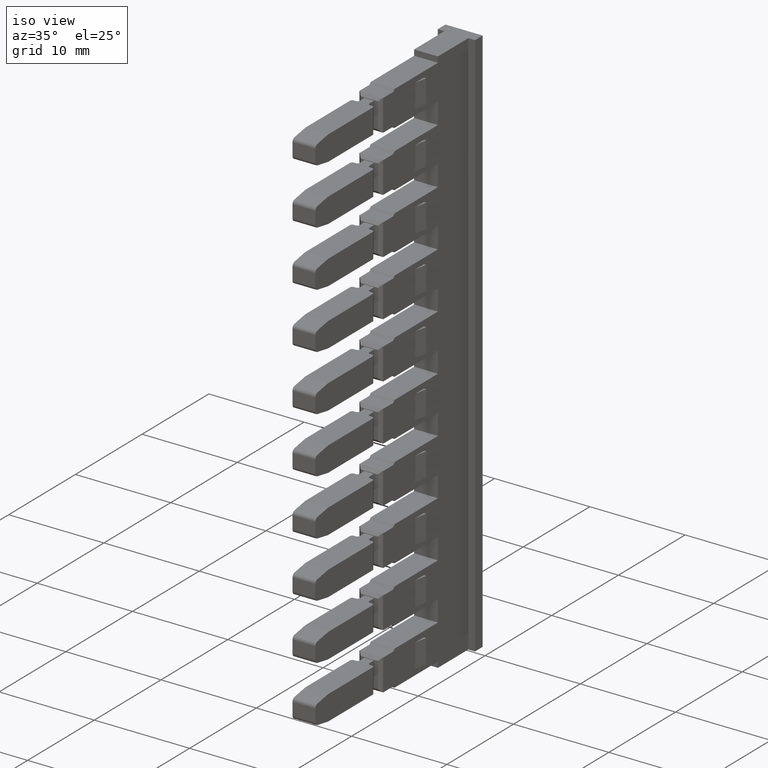
[diagram: clean part render]
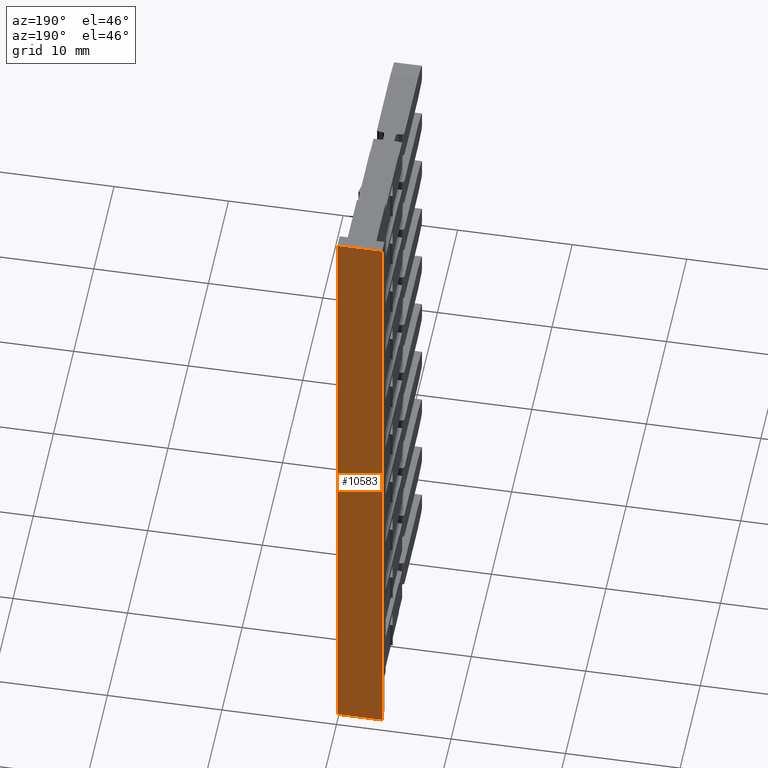
[diagram: tour spotlight — one face highlighted and labeled with its STEP entity id]
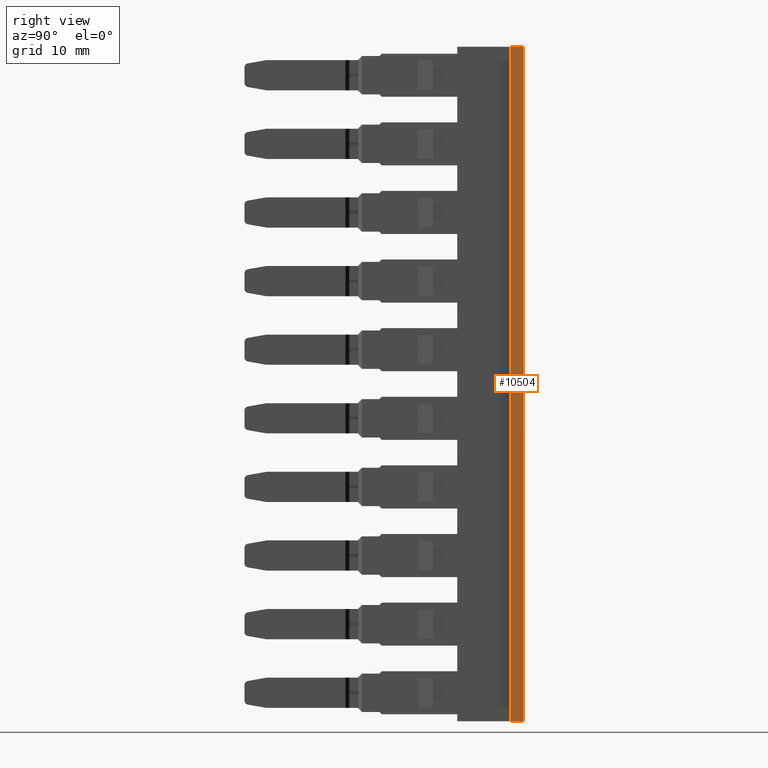
[diagram: tour spotlight — one face highlighted and labeled with its STEP entity id]
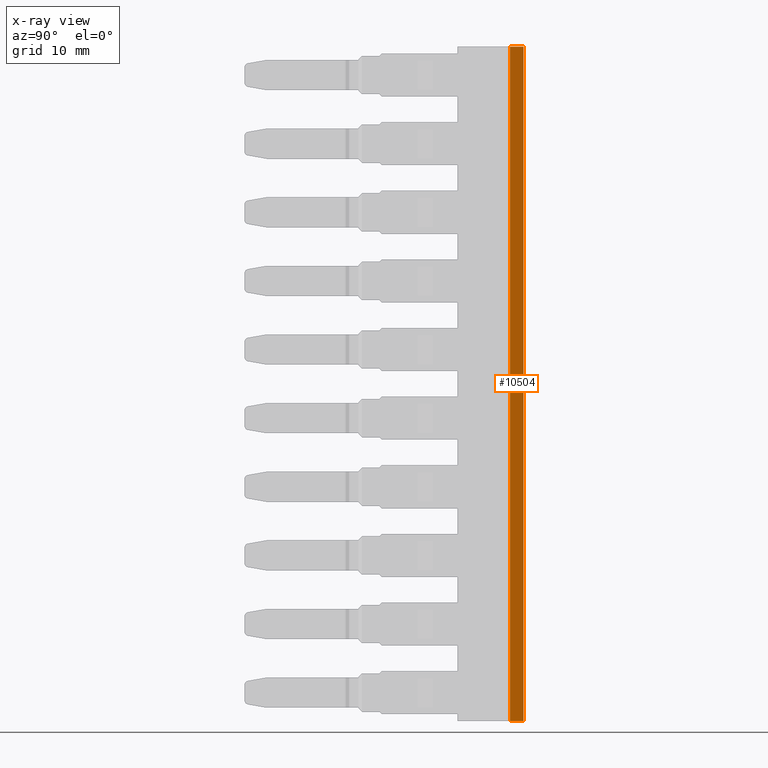
[diagram: x-ray of the same camera — body ghosted, this tour face saturated]
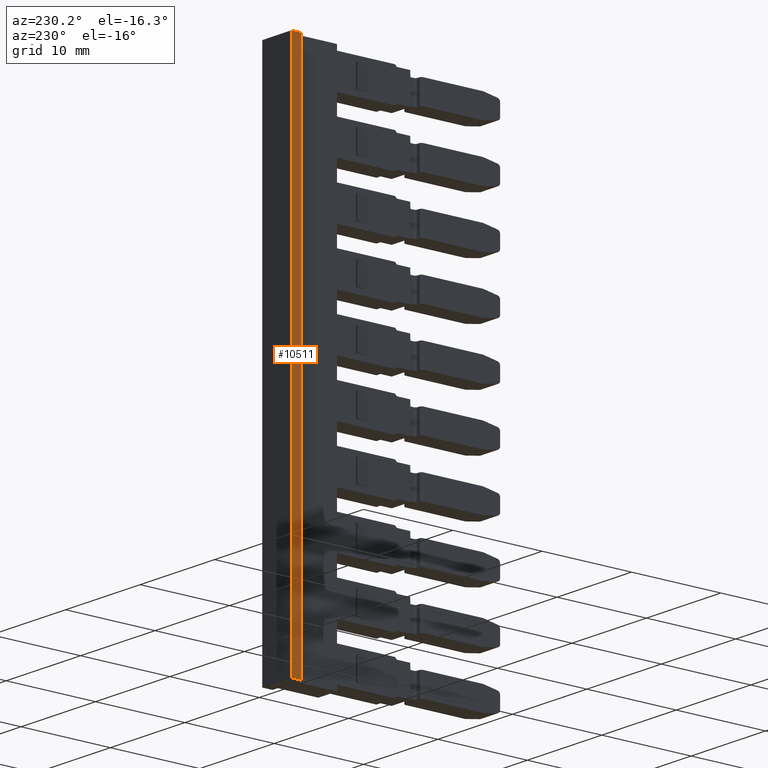
[diagram: tour spotlight — one face highlighted and labeled with its STEP entity id]
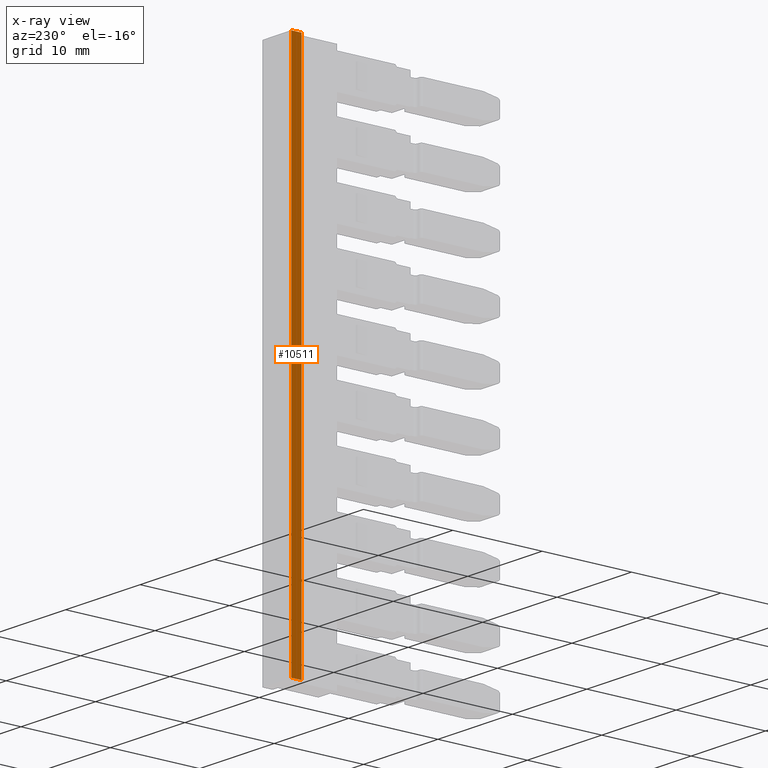
[diagram: x-ray of the same camera — body ghosted, this tour face saturated]
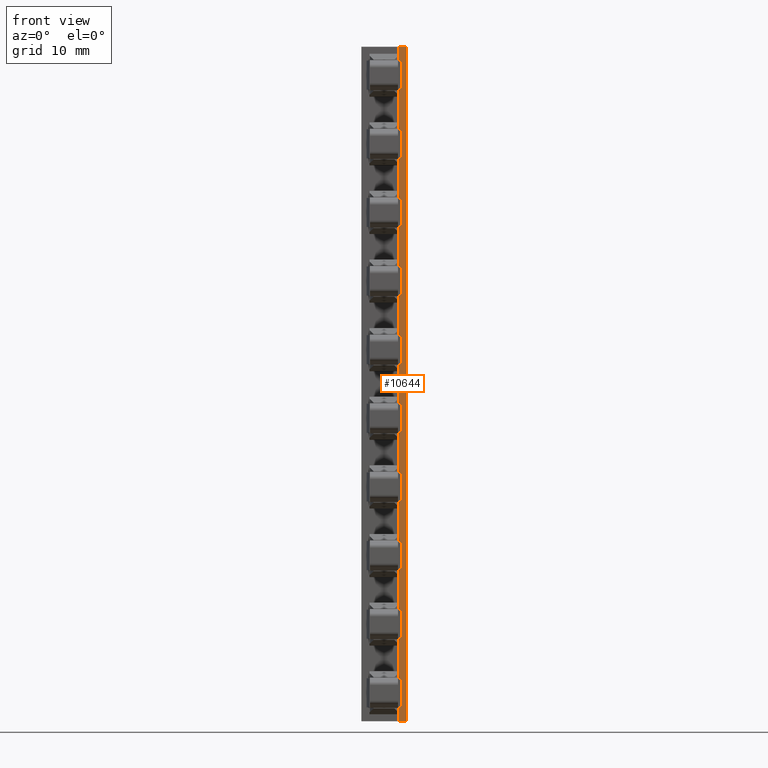
[diagram: tour spotlight — one face highlighted and labeled with its STEP entity id]
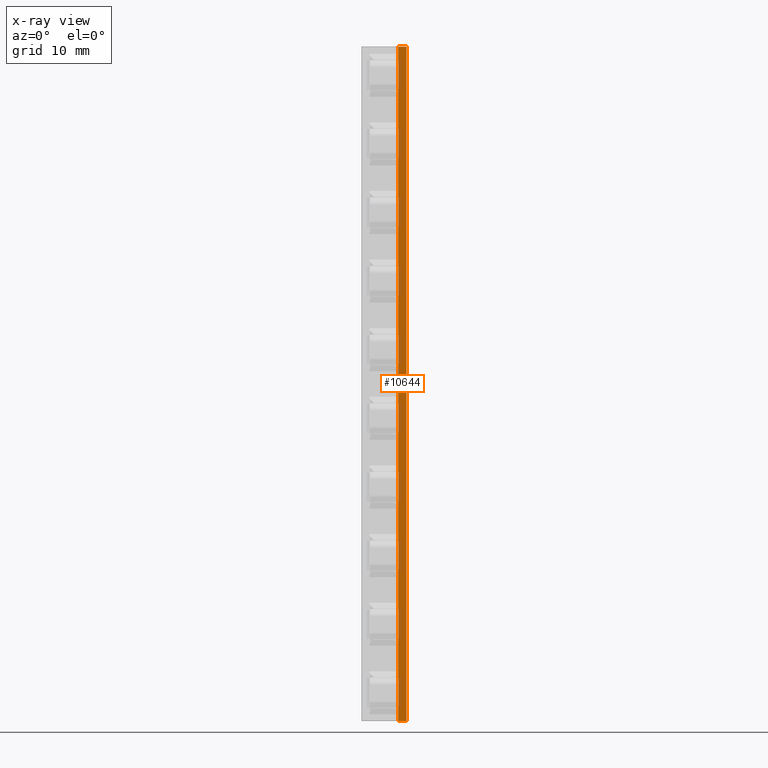
[diagram: x-ray of the same camera — body ghosted, this tour face saturated]
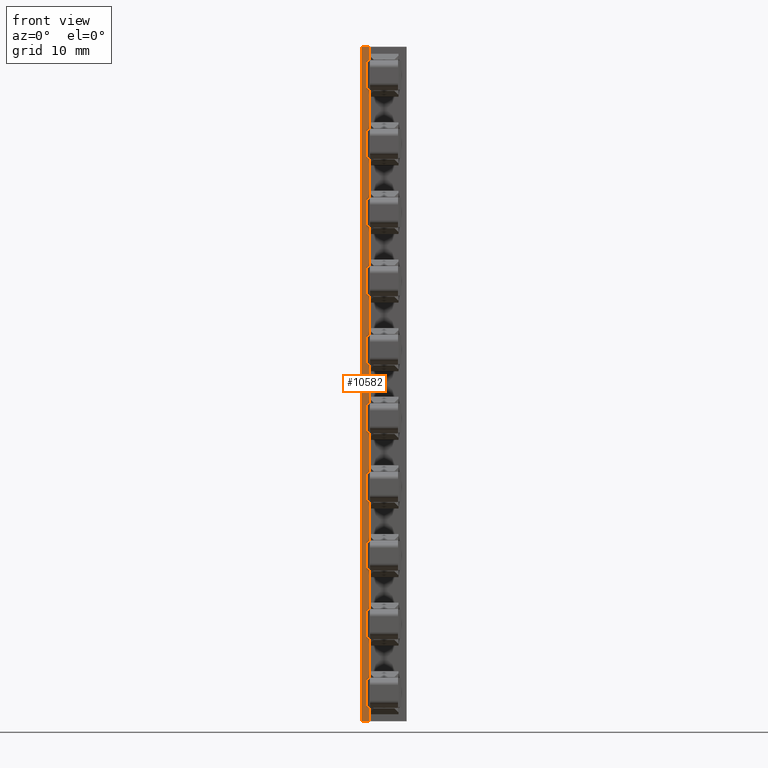
[diagram: tour spotlight — one face highlighted and labeled with its STEP entity id]
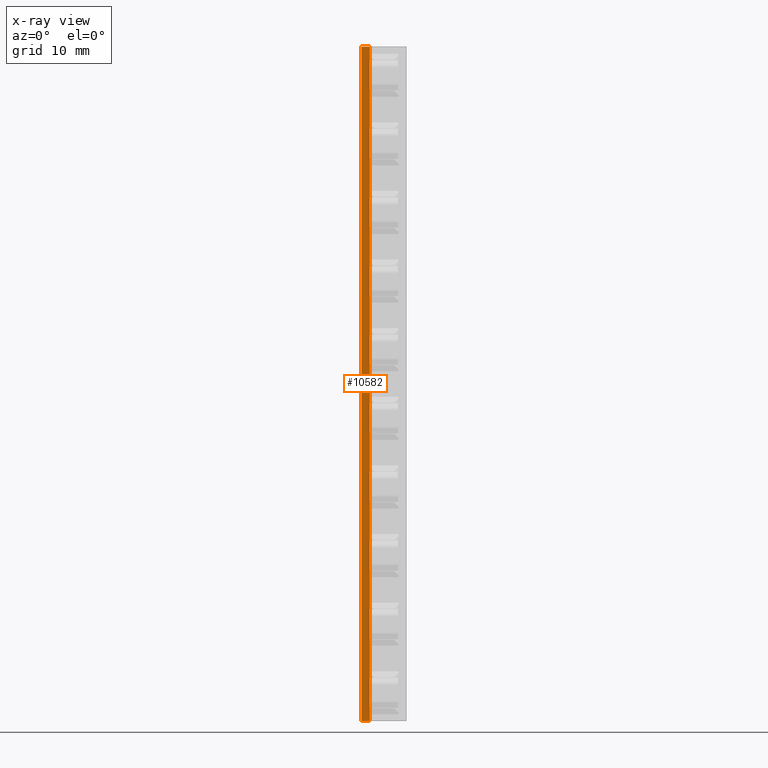
[diagram: x-ray of the same camera — body ghosted, this tour face saturated]
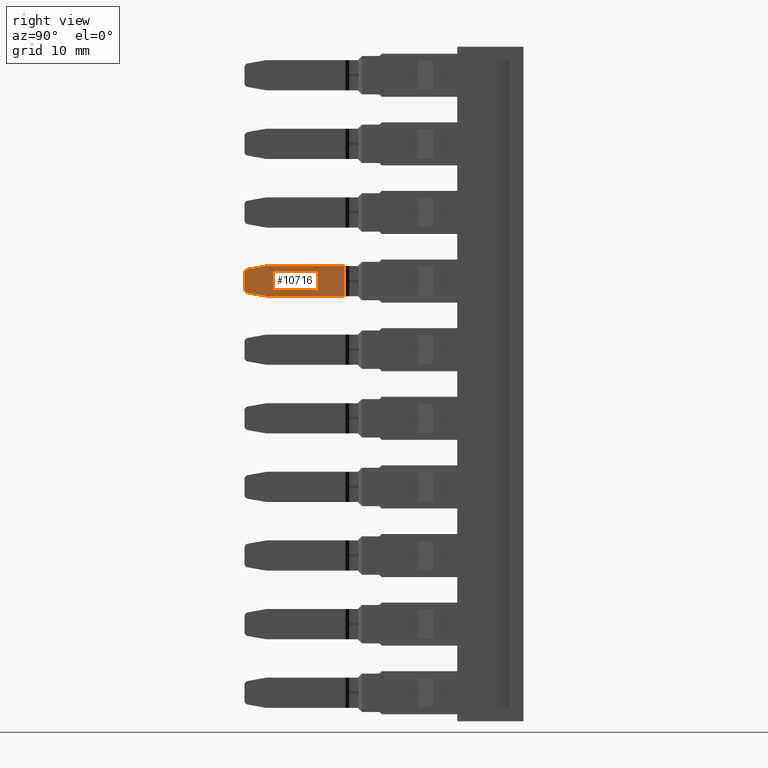
[diagram: tour spotlight — one face highlighted and labeled with its STEP entity id]
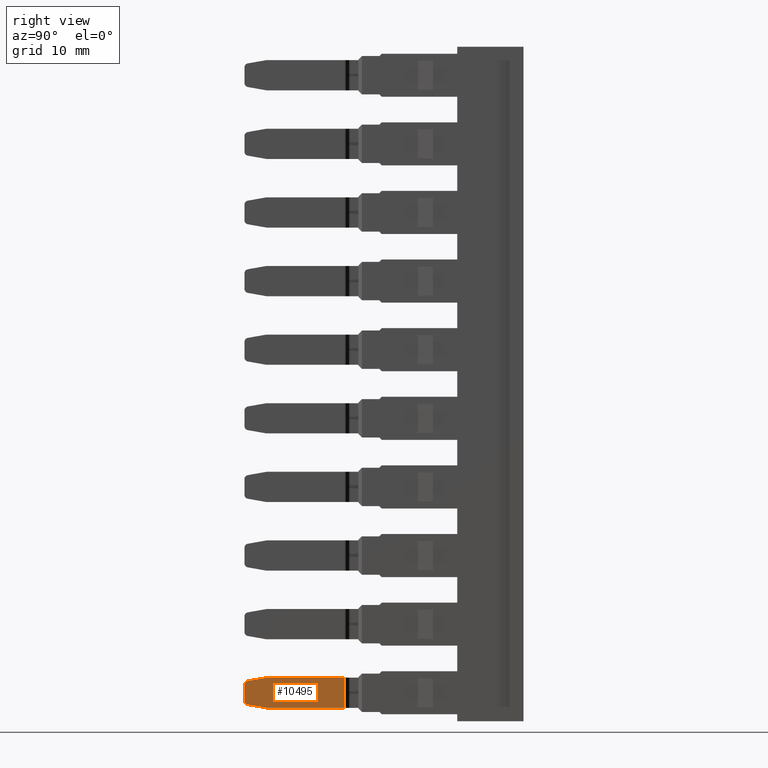
[diagram: tour spotlight — one face highlighted and labeled with its STEP entity id]
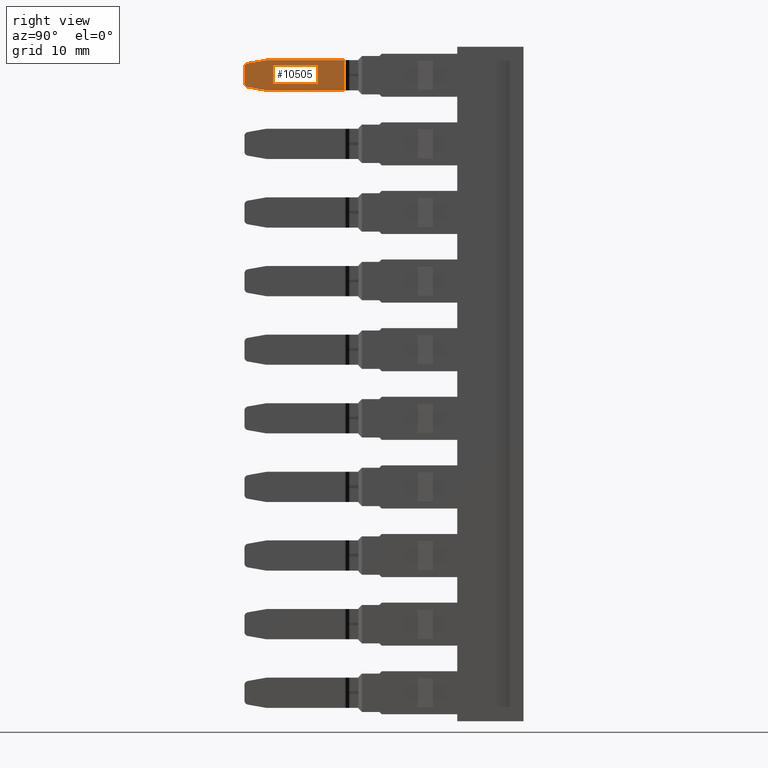
[diagram: tour spotlight — one face highlighted and labeled with its STEP entity id]
A machine part: a face-by-face anatomy tour. The part has 460 B-rep faces; the first image is the clean iso view, then the 8 largest visible faces are spotlighted one at a time (largest first), each with its STEP entity span.

Face 1 — auxiliary view, entity #10583. In plain terms, the highlighted planar face has unit normal (-0, 1, 0).
Definition (entity closure, byte-faithful):
#1065 = VERTEX_POINT ( 'NONE', #4803 ) ;
#1110 = VERTEX_POINT ( 'NONE', #4879 ) ;
#1482 = VECTOR ( 'NONE', #6508, 1000.000000000000000 ) ;
#1510 = VECTOR ( 'NONE', #6510, 1000.000000000000000 ) ;
#1585 = VECTOR ( 'NONE', #12533, 1000.000000000000000 ) ;
#1589 = VECTOR ( 'NONE', #12576, 1000.000000000000000 ) ;
#2797 = EDGE_CURVE ( 'NONE', #8585, #1110, #6427, .T. ) ;
#2802 = EDGE_CURVE ( 'NONE', #8600, #1065, #6494, .T. ) ;
#2849 = EDGE_CURVE ( 'NONE', #8585, #1065, #12532, .T. ) ;
#2858 = EDGE_CURVE ( 'NONE', #8600, #1110, #12580, .T. ) ;
#4803 = CARTESIAN_POINT ( 'NONE',  ( 1456.068071211366000, 1009.692679537514100, -77.04999999999267900 ) ) ;
#4879 = CARTESIAN_POINT ( 'NONE',  ( 1459.968071211366100, 1009.692679537458600, -135.0499999999873900 ) ) ;
#6168 = PLANE ( 'NONE',  #13547 ) ;
#6222 = FACE_OUTER_BOUND ( 'NONE', #8040, .T. ) ;
#6241 = CARTESIAN_POINT ( 'NONE',  ( 1459.718071211365900, 1009.692679537520100, -112.3308473691034000 ) ) ;
#6242 = DIRECTION ( 'NONE',  ( -2.625242473304434000E-014, 1.000000000000000000, 6.606529101504750500E-015 ) ) ;
#6243 = DIRECTION ( 'NONE',  ( -1.000000000000000000, -2.625242473304434000E-014, 0.0000000000000000000 ) ) ;
#6361 = CARTESIAN_POINT ( 'NONE',  ( 1457.871626077922200, 1009.692679537456600, -135.0499999999874500 ) ) ;
#6427 = LINE ( 'NONE', #6361, #1482 ) ;
#6469 = CARTESIAN_POINT ( 'NONE',  ( 1457.871626077922200, 1009.692679537512000, -77.04999999999265000 ) ) ;
#6494 = LINE ( 'NONE', #6469, #1510 ) ;
#6508 = DIRECTION ( 'NONE',  ( 1.000000000000000000, -1.591874026890570400E-028, -1.715124499443520100E-015 ) ) ;
#6510 = DIRECTION ( 'NONE',  ( -1.000000000000000000, 4.794056557034578200E-028, -5.145373498329340500E-015 ) ) ;
#8040 = EDGE_LOOP ( 'NONE', ( #8543, #8528, #8540, #8423 ) ) ;
#8423 = ORIENTED_EDGE ( 'NONE', *, *, #2797, .F. ) ;
#8528 = ORIENTED_EDGE ( 'NONE', *, *, #2802, .F. ) ;
#8540 = ORIENTED_EDGE ( 'NONE', *, *, #2858, .T. ) ;
#8543 = ORIENTED_EDGE ( 'NONE', *, *, #2849, .T. ) ;
#8585 = VERTEX_POINT ( 'NONE', #9379 ) ;
#8600 = VERTEX_POINT ( 'NONE', #9457 ) ;
#9379 = CARTESIAN_POINT ( 'NONE',  ( 1456.068071211366000, 1009.692679537458600, -135.0499999999874500 ) ) ;
#9457 = CARTESIAN_POINT ( 'NONE',  ( 1459.968071211366100, 1009.692679537514100, -77.04999999999265000 ) ) ;
#10583 = ADVANCED_FACE ( 'NONE', ( #6222 ), #6168, .T. ) ;
#12514 = CARTESIAN_POINT ( 'NONE',  ( 1456.068071211366000, 1009.692679537520100, -112.3308473691034000 ) ) ;
#12532 = LINE ( 'NONE', #12514, #1585 ) ;
#12533 = DIRECTION ( 'NONE',  ( 1.734374079839205100E-028, -6.606529101504750500E-015, 1.000000000000000000 ) ) ;
#12539 = CARTESIAN_POINT ( 'NONE',  ( 1459.968071211366100, 1009.692679537520100, -112.3308473691034000 ) ) ;
#12576 = DIRECTION ( 'NONE',  ( -1.734374079839205100E-028, 6.606529101504750500E-015, -1.000000000000000000 ) ) ;
#12580 = LINE ( 'NONE', #12539, #1589 ) ;
#13547 = AXIS2_PLACEMENT_3D ( 'NONE', #6241, #6242, #6243 ) ;

Face 2 — right view, entity #10504. An x-ray twin of the same camera follows (body ghosted, this face saturated) — the face is partly hidden behind the body. In plain terms, the highlighted planar face has unit normal (1, -0, -0).
Definition (entity closure, byte-faithful):
#1053 = VERTEX_POINT ( 'NONE', #4787 ) ;
#1075 = VERTEX_POINT ( 'NONE', #4826 ) ;
#1110 = VERTEX_POINT ( 'NONE', #4879 ) ;
#1589 = VECTOR ( 'NONE', #12576, 1000.000000000000000 ) ;
#1605 = VECTOR ( 'NONE', #12545, 1000.000000000000000 ) ;
#1629 = VECTOR ( 'NONE', #12673, 1000.000000000000000 ) ;
#1632 = VECTOR ( 'NONE', #12634, 1000.000000000000000 ) ;
#2858 = EDGE_CURVE ( 'NONE', #8600, #1110, #12580, .T. ) ;
#2870 = EDGE_CURVE ( 'NONE', #1075, #1053, #12562, .T. ) ;
#2896 = EDGE_CURVE ( 'NONE', #1053, #1110, #12587, .T. ) ;
#2901 = EDGE_CURVE ( 'NONE', #1075, #8600, #12631, .T. ) ;
#3618 = CARTESIAN_POINT ( 'NONE',  ( 1459.968071211366100, 1009.692679537520100, -112.3308473691034000 ) ) ;
#3624 = PLANE ( 'NONE',  #13485 ) ;
#3630 = FACE_OUTER_BOUND ( 'NONE', #8078, .T. ) ;
#3631 = DIRECTION ( 'NONE',  ( 1.000000000000000000, -6.401193638283110000E-015, -1.715124499442926100E-015 ) ) ;
#3632 = DIRECTION ( 'NONE',  ( 6.401193638283110000E-015, 1.000000000000000000, 0.0000000000000000000 ) ) ;
#4787 = CARTESIAN_POINT ( 'NONE',  ( 1459.968071211366100, 1008.542679537458200, -135.0499999999873400 ) ) ;
#4826 = CARTESIAN_POINT ( 'NONE',  ( 1459.968071211366100, 1008.542679537514300, -77.04999999999270700 ) ) ;
#4879 = CARTESIAN_POINT ( 'NONE',  ( 1459.968071211366100, 1009.692679537458600, -135.0499999999873900 ) ) ;
#8078 = EDGE_LOOP ( 'NONE', ( #8447, #8422, #8424, #8453 ) ) ;
#8422 = ORIENTED_EDGE ( 'NONE', *, *, #2896, .T. ) ;
#8424 = ORIENTED_EDGE ( 'NONE', *, *, #2858, .F. ) ;
#8447 = ORIENTED_EDGE ( 'NONE', *, *, #2870, .T. ) ;
#8453 = ORIENTED_EDGE ( 'NONE', *, *, #2901, .F. ) ;
#8600 = VERTEX_POINT ( 'NONE', #9457 ) ;
#9457 = CARTESIAN_POINT ( 'NONE',  ( 1459.968071211366100, 1009.692679537514100, -77.04999999999265000 ) ) ;
#10504 = ADVANCED_FACE ( 'NONE', ( #3630 ), #3624, .T. ) ;
#12539 = CARTESIAN_POINT ( 'NONE',  ( 1459.968071211366100, 1009.692679537520100, -112.3308473691034000 ) ) ;
#12545 = DIRECTION ( 'NONE',  ( -6.693669382370647900E-057, -5.228454067018329500E-043, -1.000000000000000000 ) ) ;
#12562 = LINE ( 'NONE', #12565, #1605 ) ;
#12565 = CARTESIAN_POINT ( 'NONE',  ( 1459.968071211366100, 1008.542679537518100, -100.1158559843420100 ) ) ;
#12576 = DIRECTION ( 'NONE',  ( -1.734374079839205100E-028, 6.606529101504750500E-015, -1.000000000000000000 ) ) ;
#12580 = LINE ( 'NONE', #12539, #1589 ) ;
#12587 = LINE ( 'NONE', #12643, #1629 ) ;
#12631 = LINE ( 'NONE', #12651, #1632 ) ;
#12634 = DIRECTION ( 'NONE',  ( -0.0000000000000000000, 1.000000000000000000, 9.317217804676702700E-014 ) ) ;
#12643 = CARTESIAN_POINT ( 'NONE',  ( 1459.968071211366100, 1009.692679537464500, -135.0499999999873400 ) ) ;
#12651 = CARTESIAN_POINT ( 'NONE',  ( 1459.968071211366100, 1004.894679537514000, -77.04999999999307600 ) ) ;
#12673 = DIRECTION ( 'NONE',  ( 6.401193638283110000E-015, 1.000000000000000000, 0.0000000000000000000 ) ) ;
#13485 = AXIS2_PLACEMENT_3D ( 'NONE', #3618, #3631, #3632 ) ;

Face 3 — auxiliary view, entity #10511. An x-ray twin of the same camera follows (body ghosted, this face saturated) — the face is partly hidden behind the body. In plain terms, the highlighted planar face has unit normal (-1, 0, -0).
Definition (entity closure, byte-faithful):
#1065 = VERTEX_POINT ( 'NONE', #4803 ) ;
#1085 = VERTEX_POINT ( 'NONE', #4781 ) ;
#1114 = VERTEX_POINT ( 'NONE', #4883 ) ;
#1585 = VECTOR ( 'NONE', #12533, 1000.000000000000000 ) ;
#1587 = VECTOR ( 'NONE', #12578, 1000.000000000000000 ) ;
#1635 = VECTOR ( 'NONE', #12619, 1000.000000000000000 ) ;
#1665 = VECTOR ( 'NONE', #12710, 1000.000000000000000 ) ;
#2849 = EDGE_CURVE ( 'NONE', #8585, #1065, #12532, .T. ) ;
#2864 = EDGE_CURVE ( 'NONE', #1085, #1114, #12577, .T. ) ;
#2883 = EDGE_CURVE ( 'NONE', #8585, #1085, #12595, .T. ) ;
#2911 = EDGE_CURVE ( 'NONE', #1114, #1065, #12687, .T. ) ;
#3587 = PLANE ( 'NONE',  #13494 ) ;
#3595 = DIRECTION ( 'NONE',  ( -1.000000000000000000, 6.401193638283130500E-015, -1.715124499442844000E-015 ) ) ;
#3609 = FACE_OUTER_BOUND ( 'NONE', #8100, .T. ) ;
#3614 = DIRECTION ( 'NONE',  ( -6.401193638283130500E-015, -1.000000000000000000, 0.0000000000000000000 ) ) ;
#3627 = CARTESIAN_POINT ( 'NONE',  ( 1456.068071211366000, 1009.692679537520100, -112.3308473691034000 ) ) ;
#4781 = CARTESIAN_POINT ( 'NONE',  ( 1456.068071211366000, 1008.542679537461000, -135.0499999999873400 ) ) ;
#4803 = CARTESIAN_POINT ( 'NONE',  ( 1456.068071211366000, 1009.692679537514100, -77.04999999999267900 ) ) ;
#4883 = CARTESIAN_POINT ( 'NONE',  ( 1456.068071211366000, 1008.542679537518100, -77.04999999999270700 ) ) ;
#8100 = EDGE_LOOP ( 'NONE', ( #8450, #8460, #8446, #8419 ) ) ;
#8419 = ORIENTED_EDGE ( 'NONE', *, *, #2883, .T. ) ;
#8446 = ORIENTED_EDGE ( 'NONE', *, *, #2849, .F. ) ;
#8450 = ORIENTED_EDGE ( 'NONE', *, *, #2864, .T. ) ;
#8460 = ORIENTED_EDGE ( 'NONE', *, *, #2911, .T. ) ;
#8585 = VERTEX_POINT ( 'NONE', #9379 ) ;
#9379 = CARTESIAN_POINT ( 'NONE',  ( 1456.068071211366000, 1009.692679537458600, -135.0499999999874500 ) ) ;
#10511 = ADVANCED_FACE ( 'NONE', ( #3609 ), #3587, .T. ) ;
#12514 = CARTESIAN_POINT ( 'NONE',  ( 1456.068071211366000, 1009.692679537520100, -112.3308473691034000 ) ) ;
#12532 = LINE ( 'NONE', #12514, #1585 ) ;
#12533 = DIRECTION ( 'NONE',  ( 1.734374079839205100E-028, -6.606529101504750500E-015, 1.000000000000000000 ) ) ;
#12558 = CARTESIAN_POINT ( 'NONE',  ( 1456.068071211366000, 1008.542679537518100, -100.1158559843420100 ) ) ;
#12577 = LINE ( 'NONE', #12558, #1587 ) ;
#12578 = DIRECTION ( 'NONE',  ( 0.0000000000000000000, -0.0000000000000000000, 1.000000000000000000 ) ) ;
#12595 = LINE ( 'NONE', #12627, #1635 ) ;
#12619 = DIRECTION ( 'NONE',  ( -6.401193638283130500E-015, -1.000000000000000000, 0.0000000000000000000 ) ) ;
#12627 = CARTESIAN_POINT ( 'NONE',  ( 1456.068071211366000, 1009.692679537464500, -135.0499999999874500 ) ) ;
#12687 = LINE ( 'NONE', #12720, #1665 ) ;
#12710 = DIRECTION ( 'NONE',  ( 6.401193638283130500E-015, 1.000000000000000000, -0.0000000000000000000 ) ) ;
#12720 = CARTESIAN_POINT ( 'NONE',  ( 1456.068071211366000, 1009.692679537520100, -77.04999999999269300 ) ) ;
#13494 = AXIS2_PLACEMENT_3D ( 'NONE', #3627, #3595, #3614 ) ;

Face 4 — front view, entity #10644. An x-ray twin of the same camera follows (body ghosted, this face saturated) — the face is partly hidden behind the body. In plain terms, the highlighted planar face has unit normal (0, 1, -0).
Definition (entity closure, byte-faithful):
#1053 = VERTEX_POINT ( 'NONE', #4787 ) ;
#1075 = VERTEX_POINT ( 'NONE', #4826 ) ;
#1544 = VECTOR ( 'NONE', #11807, 1000.000000000000000 ) ;
#1605 = VECTOR ( 'NONE', #12545, 1000.000000000000000 ) ;
#1674 = VECTOR ( 'NONE', #11795, 1000.000000000000000 ) ;
#1680 = VECTOR ( 'NONE', #11778, 1000.000000000000000 ) ;
#2870 = EDGE_CURVE ( 'NONE', #1075, #1053, #12562, .T. ) ;
#2930 = EDGE_CURVE ( 'NONE', #8580, #1075, #11799, .T. ) ;
#2931 = EDGE_CURVE ( 'NONE', #1053, #8550, #11765, .T. ) ;
#2949 = EDGE_CURVE ( 'NONE', #8580, #8550, #11834, .T. ) ;
#4787 = CARTESIAN_POINT ( 'NONE',  ( 1459.968071211366100, 1008.542679537458200, -135.0499999999873400 ) ) ;
#4826 = CARTESIAN_POINT ( 'NONE',  ( 1459.968071211366100, 1008.542679537514300, -77.04999999999270700 ) ) ;
#5339 = ORIENTED_EDGE ( 'NONE', *, *, #2931, .F. ) ;
#6673 = DIRECTION ( 'NONE',  ( 1.280238727656624100E-014, 1.000000000000000000, -5.228454067018329500E-043 ) ) ;
#6690 = DIRECTION ( 'NONE',  ( -1.000000000000000000, 1.280238727656624100E-014, 0.0000000000000000000 ) ) ;
#6695 = CARTESIAN_POINT ( 'NONE',  ( 1459.868482057144100, 1008.542679537518100, -100.1158559843420100 ) ) ;
#6699 = FACE_OUTER_BOUND ( 'NONE', #8145, .T. ) ;
#6705 = PLANE ( 'NONE',  #13615 ) ;
#8145 = EDGE_LOOP ( 'NONE', ( #8516, #5339, #8495, #8517 ) ) ;
#8495 = ORIENTED_EDGE ( 'NONE', *, *, #2870, .F. ) ;
#8516 = ORIENTED_EDGE ( 'NONE', *, *, #2949, .T. ) ;
#8517 = ORIENTED_EDGE ( 'NONE', *, *, #2930, .F. ) ;
#8550 = VERTEX_POINT ( 'NONE', #9416 ) ;
#8580 = VERTEX_POINT ( 'NONE', #9376 ) ;
#9376 = CARTESIAN_POINT ( 'NONE',  ( 1459.267071211366600, 1008.542679537515800, -77.04999999999287800 ) ) ;
#9416 = CARTESIAN_POINT ( 'NONE',  ( 1459.267071211366600, 1008.542679537460300, -135.0499999999873600 ) ) ;
#10644 = ADVANCED_FACE ( 'NONE', ( #6699 ), #6705, .F. ) ;
#11765 = LINE ( 'NONE', #11792, #1674 ) ;
#11778 = DIRECTION ( 'NONE',  ( 1.000000000000000000, -1.280238727656624100E-014, -0.0000000000000000000 ) ) ;
#11780 = CARTESIAN_POINT ( 'NONE',  ( 1459.868482057144100, 1008.542679537518100, -77.04999999999283500 ) ) ;
#11792 = CARTESIAN_POINT ( 'NONE',  ( 1457.871626077922200, 1008.542679537456600, -135.0499999999873400 ) ) ;
#11795 = DIRECTION ( 'NONE',  ( -1.000000000000000000, 1.591874026890570400E-028, 1.715124499443520100E-015 ) ) ;
#11799 = LINE ( 'NONE', #11780, #1680 ) ;
#11807 = DIRECTION ( 'NONE',  ( -8.167936110773030400E-029, 1.045690813403665900E-042, -1.000000000000000000 ) ) ;
#11829 = CARTESIAN_POINT ( 'NONE',  ( 1459.267071211366600, 1008.542679537515100, -100.1158559843420100 ) ) ;
#11834 = LINE ( 'NONE', #11829, #1544 ) ;
#12545 = DIRECTION ( 'NONE',  ( -6.693669382370647900E-057, -5.228454067018329500E-043, -1.000000000000000000 ) ) ;
#12562 = LINE ( 'NONE', #12565, #1605 ) ;
#12565 = CARTESIAN_POINT ( 'NONE',  ( 1459.968071211366100, 1008.542679537518100, -100.1158559843420100 ) ) ;
#13615 = AXIS2_PLACEMENT_3D ( 'NONE', #6695, #6673, #6690 ) ;

Face 5 — front view, entity #10582. An x-ray twin of the same camera follows (body ghosted, this face saturated) — the face is partly hidden behind the body. In plain terms, the highlighted planar face has unit normal (0, 1, 0).
Definition (entity closure, byte-faithful):
#1085 = VERTEX_POINT ( 'NONE', #4781 ) ;
#1114 = VERTEX_POINT ( 'NONE', #4883 ) ;
#1548 = VECTOR ( 'NONE', #11863, 1000.000000000000000 ) ;
#1587 = VECTOR ( 'NONE', #12578, 1000.000000000000000 ) ;
#2864 = EDGE_CURVE ( 'NONE', #1085, #1114, #12577, .T. ) ;
#2961 = EDGE_CURVE ( 'NONE', #1114, #8604, #11859, .T. ) ;
#2982 = EDGE_CURVE ( 'NONE', #7365, #8604, #11923, .T. ) ;
#3051 = EDGE_CURVE ( 'NONE', #7365, #1085, #12130, .T. ) ;
#4214 = ORIENTED_EDGE ( 'NONE', *, *, #2864, .F. ) ;
#4219 = ORIENTED_EDGE ( 'NONE', *, *, #2982, .T. ) ;
#4236 = ORIENTED_EDGE ( 'NONE', *, *, #2961, .F. ) ;
#4270 = ORIENTED_EDGE ( 'NONE', *, *, #3051, .F. ) ;
#4781 = CARTESIAN_POINT ( 'NONE',  ( 1456.068071211366000, 1008.542679537461000, -135.0499999999873400 ) ) ;
#4883 = CARTESIAN_POINT ( 'NONE',  ( 1456.068071211366000, 1008.542679537518100, -77.04999999999270700 ) ) ;
#6178 = DIRECTION ( 'NONE',  ( 0.0000000000000000000, 1.000000000000000000, 0.0000000000000000000 ) ) ;
#6183 = CARTESIAN_POINT ( 'NONE',  ( 1456.167660365589900, 1008.542679537518100, -100.1158559843420100 ) ) ;
#6184 = PLANE ( 'NONE',  #13543 ) ;
#6201 = DIRECTION ( 'NONE',  ( 0.0000000000000000000, -0.0000000000000000000, 1.000000000000000000 ) ) ;
#6244 = FACE_OUTER_BOUND ( 'NONE', #8093, .T. ) ;
#7365 = VERTEX_POINT ( 'NONE', #8862 ) ;
#8093 = EDGE_LOOP ( 'NONE', ( #4219, #4236, #4214, #4270 ) ) ;
#8604 = VERTEX_POINT ( 'NONE', #9468 ) ;
#8862 = CARTESIAN_POINT ( 'NONE',  ( 1456.769071211365800, 1008.542679537461000, -135.0499999999872200 ) ) ;
#9468 = CARTESIAN_POINT ( 'NONE',  ( 1456.769071211365800, 1008.542679537517400, -77.04999999999270700 ) ) ;
#10582 = ADVANCED_FACE ( 'NONE', ( #6244 ), #6184, .F. ) ;
#11859 = LINE ( 'NONE', #11880, #1548 ) ;
#11863 = DIRECTION ( 'NONE',  ( 1.000000000000000000, 0.0000000000000000000, -0.0000000000000000000 ) ) ;
#11880 = CARTESIAN_POINT ( 'NONE',  ( 1456.167660365589900, 1008.542679537518100, -77.04999999999269300 ) ) ;
#11900 = CARTESIAN_POINT ( 'NONE',  ( 1456.769071211365800, 1008.542679537515100, -100.1158559843420100 ) ) ;
#11923 = LINE ( 'NONE', #11900, #13803 ) ;
#11924 = DIRECTION ( 'NONE',  ( -0.0000000000000000000, -0.0000000000000000000, 1.000000000000000000 ) ) ;
#12130 = LINE ( 'NONE', #12155, #12780 ) ;
#12137 = DIRECTION ( 'NONE',  ( -1.000000000000000000, -0.0000000000000000000, 0.0000000000000000000 ) ) ;
#12155 = CARTESIAN_POINT ( 'NONE',  ( 1456.167660365589900, 1008.542679537462600, -135.0499999999872800 ) ) ;
#12558 = CARTESIAN_POINT ( 'NONE',  ( 1456.068071211366000, 1008.542679537518100, -100.1158559843420100 ) ) ;
#12577 = LINE ( 'NONE', #12558, #1587 ) ;
#12578 = DIRECTION ( 'NONE',  ( 0.0000000000000000000, -0.0000000000000000000, 1.000000000000000000 ) ) ;
#12780 = VECTOR ( 'NONE', #12137, 1000.000000000000000 ) ;
#13543 = AXIS2_PLACEMENT_3D ( 'NONE', #6183, #6178, #6201 ) ;
#13803 = VECTOR ( 'NONE', #11924, 1000.000000000000000 ) ;

Face 6 — right view, entity #10716. In plain terms, the highlighted planar face has unit normal (1, -0, 0).
Definition (entity closure, byte-faithful):
#1830 = CIRCLE ( 'NONE', #1831, 0.3499999999999753300 ) ;
#1831 = AXIS2_PLACEMENT_3D ( 'NONE', #5363, #5365, #5361 ) ;
#1852 = AXIS2_PLACEMENT_3D ( 'NONE', #5278, #5271, #5264 ) ;
#1865 = CIRCLE ( 'NONE', #1852, 0.3499999999999892100 ) ;
#1906 = VECTOR ( 'NONE', #5409, 1000.000000000000000 ) ;
#1911 = VECTOR ( 'NONE', #5458, 1000.000000000000000 ) ;
#1912 = VECTOR ( 'NONE', #5427, 1000.000000000000000 ) ;
#1942 = VECTOR ( 'NONE', #5408, 999.9999999999998900 ) ;
#1957 = VECTOR ( 'NONE', #5659, 1000.000000000000000 ) ;
#2002 = VECTOR ( 'NONE', #5658, 1000.000000000000100 ) ;
#2481 = EDGE_CURVE ( 'NONE', #7540, #7519, #1865, .T. ) ;
#2505 = EDGE_CURVE ( 'NONE', #7563, #7560, #1830, .T. ) ;
#2516 = EDGE_CURVE ( 'NONE', #7584, #7538, #5399, .T. ) ;
#2518 = EDGE_CURVE ( 'NONE', #7563, #7519, #5417, .T. ) ;
#2522 = EDGE_CURVE ( 'NONE', #7538, #7560, #5416, .T. ) ;
#2529 = EDGE_CURVE ( 'NONE', #7541, #7588, #5462, .T. ) ;
#2588 = EDGE_CURVE ( 'NONE', #7584, #7588, #5651, .T. ) ;
#2597 = EDGE_CURVE ( 'NONE', #7540, #7541, #5641, .T. ) ;
#5264 = DIRECTION ( 'NONE',  ( 0.0000000000000000000, 0.0000000000000000000, -1.000000000000000000 ) ) ;
#5271 = DIRECTION ( 'NONE',  ( -1.000000000000000000, -5.817690394031370500E-016, -1.715124499442885300E-015 ) ) ;
#5278 = CARTESIAN_POINT ( 'NONE',  ( 1459.217905001598200, 986.0446795375251000, -97.87192042437014500 ) ) ;
#5361 = DIRECTION ( 'NONE',  ( 0.0000000000000000000, 0.0000000000000000000, -1.000000000000000000 ) ) ;
#5363 = CARTESIAN_POINT ( 'NONE',  ( 1459.217905001598200, 986.0446795375251000, -96.52879612739111800 ) ) ;
#5365 = DIRECTION ( 'NONE',  ( -1.000000000000000000, -5.817690394031370500E-016, -1.715124499442885300E-015 ) ) ;
#5399 = LINE ( 'NONE', #5425, #1906 ) ;
#5401 = CARTESIAN_POINT ( 'NONE',  ( 1459.217905001598200, 987.5951899124150900, -95.90000000026969900 ) ) ;
#5408 = DIRECTION ( 'NONE',  ( -0.0000000000000000000, -0.9848077530122177900, -0.1736481776668759300 ) ) ;
#5409 = DIRECTION ( 'NONE',  ( -0.0000000000000000000, -1.000000000000000000, -0.0000000000000000000 ) ) ;
#5416 = LINE ( 'NONE', #5401, #1942 ) ;
#5417 = LINE ( 'NONE', #5437, #1912 ) ;
#5425 = CARTESIAN_POINT ( 'NONE',  ( 1459.217905001598200, 988.9878926471561700, -95.90000000020818000 ) ) ;
#5427 = DIRECTION ( 'NONE',  ( -0.0000000000000000000, -0.0000000000000000000, -1.000000000000000000 ) ) ;
#5437 = CARTESIAN_POINT ( 'NONE',  ( 1459.217905001598200, 985.6946795375250800, -97.87192042437016000 ) ) ;
#5452 = CARTESIAN_POINT ( 'NONE',  ( 1459.217905001598200, 988.9878926471561700, -98.49999999998863100 ) ) ;
#5458 = DIRECTION ( 'NONE',  ( 0.0000000000000000000, 1.000000000000000000, 0.0000000000000000000 ) ) ;
#5462 = LINE ( 'NONE', #5452, #1911 ) ;
#5632 = CARTESIAN_POINT ( 'NONE',  ( 1459.217905001598200, 994.2959515111216400, -98.49999999999008100 ) ) ;
#5641 = LINE ( 'NONE', #5648, #2002 ) ;
#5648 = CARTESIAN_POINT ( 'NONE',  ( 1459.217905001598200, 987.5911261469111700, -98.49999999999006700 ) ) ;
#5651 = LINE ( 'NONE', #5632, #1957 ) ;
#5658 = DIRECTION ( 'NONE',  ( -0.0000000000000000000, 0.9848077530122103500, -0.1736481776669172600 ) ) ;
#5659 = DIRECTION ( 'NONE',  ( -0.0000000000000000000, -0.0000000000000000000, -1.000000000000000000 ) ) ;
#7053 = PLANE ( 'NONE',  #13634 ) ;
#7056 = FACE_OUTER_BOUND ( 'NONE', #8178, .T. ) ;
#7059 = CARTESIAN_POINT ( 'NONE',  ( 1459.217905001598200, 988.9878926471561700, -113.6791513848264300 ) ) ;
#7068 = DIRECTION ( 'NONE',  ( 1.000000000000000000, -0.0000000000000000000, 0.0000000000000000000 ) ) ;
#7069 = DIRECTION ( 'NONE',  ( 0.0000000000000000000, 0.0000000000000000000, -1.000000000000000000 ) ) ;
#7519 = VERTEX_POINT ( 'NONE', #8995 ) ;
#7538 = VERTEX_POINT ( 'NONE', #9082 ) ;
#7540 = VERTEX_POINT ( 'NONE', #9061 ) ;
#7541 = VERTEX_POINT ( 'NONE', #9081 ) ;
#7560 = VERTEX_POINT ( 'NONE', #9085 ) ;
#7563 = VERTEX_POINT ( 'NONE', #9070 ) ;
#7584 = VERTEX_POINT ( 'NONE', #9060 ) ;
#7588 = VERTEX_POINT ( 'NONE', #9073 ) ;
#8178 = EDGE_LOOP ( 'NONE', ( #9900, #9901, #9890, #9917, #9869, #9839, #9822, #9886 ) ) ;
#8995 = CARTESIAN_POINT ( 'NONE',  ( 1459.217905001598200, 985.6946795375250800, -97.87192042437014500 ) ) ;
#9060 = CARTESIAN_POINT ( 'NONE',  ( 1459.217905001598200, 994.2959515111216400, -95.90000000013770900 ) ) ;
#9061 = CARTESIAN_POINT ( 'NONE',  ( 1459.217905001598200, 985.9839026753416000, -98.21660313792446600 ) ) ;
#9070 = CARTESIAN_POINT ( 'NONE',  ( 1459.217905001598200, 985.6946795375250800, -96.52879612739111800 ) ) ;
#9073 = CARTESIAN_POINT ( 'NONE',  ( 1459.217905001598200, 994.2959515111216400, -98.49999999998934200 ) ) ;
#9081 = CARTESIAN_POINT ( 'NONE',  ( 1459.217905001598200, 987.5911261469111700, -98.49999999998812000 ) ) ;
#9082 = CARTESIAN_POINT ( 'NONE',  ( 1459.217905001598200, 987.5951899123591600, -95.90000000015427900 ) ) ;
#9085 = CARTESIAN_POINT ( 'NONE',  ( 1459.217905001598200, 985.9839026753417100, -96.18411341383684000 ) ) ;
#9822 = ORIENTED_EDGE ( 'NONE', *, *, #2529, .T. ) ;
#9839 = ORIENTED_EDGE ( 'NONE', *, *, #2597, .T. ) ;
#9869 = ORIENTED_EDGE ( 'NONE', *, *, #2481, .F. ) ;
#9886 = ORIENTED_EDGE ( 'NONE', *, *, #2588, .F. ) ;
#9890 = ORIENTED_EDGE ( 'NONE', *, *, #2505, .F. ) ;
#9900 = ORIENTED_EDGE ( 'NONE', *, *, #2516, .T. ) ;
#9901 = ORIENTED_EDGE ( 'NONE', *, *, #2522, .T. ) ;
#9917 = ORIENTED_EDGE ( 'NONE', *, *, #2518, .T. ) ;
#10716 = ADVANCED_FACE ( 'NONE', ( #7056 ), #7053, .T. ) ;
#13634 = AXIS2_PLACEMENT_3D ( 'NONE', #7059, #7068, #7069 ) ;

Face 7 — right view, entity #10495. In plain terms, the highlighted planar face has unit normal (1, -0, 0).
Definition (entity closure, byte-faithful):
#684 = ORIENTED_EDGE ( 'NONE', *, *, #10158, .F. ) ;
#735 = ORIENTED_EDGE ( 'NONE', *, *, #10146, .T. ) ;
#747 = ORIENTED_EDGE ( 'NONE', *, *, #10165, .T. ) ;
#765 = ORIENTED_EDGE ( 'NONE', *, *, #10149, .T. ) ;
#774 = ORIENTED_EDGE ( 'NONE', *, *, #10183, .F. ) ;
#775 = ORIENTED_EDGE ( 'NONE', *, *, #10147, .T. ) ;
#790 = ORIENTED_EDGE ( 'NONE', *, *, #10163, .T. ) ;
#797 = ORIENTED_EDGE ( 'NONE', *, *, #10133, .F. ) ;
#3546 = DIRECTION ( 'NONE',  ( 1.000000000000000000, -0.0000000000000000000, 0.0000000000000000000 ) ) ;
#3547 = DIRECTION ( 'NONE',  ( 0.0000000000000000000, 0.0000000000000000000, -1.000000000000000000 ) ) ;
#3554 = CARTESIAN_POINT ( 'NONE',  ( 1459.217905001598200, 988.9878926471144500, -149.0791513848264200 ) ) ;
#3568 = FACE_OUTER_BOUND ( 'NONE', #7951, .T. ) ;
#3577 = PLANE ( 'NONE',  #13486 ) ;
#7803 = VERTEX_POINT ( 'NONE', #9304 ) ;
#7811 = VERTEX_POINT ( 'NONE', #9282 ) ;
#7818 = VERTEX_POINT ( 'NONE', #9323 ) ;
#7830 = VERTEX_POINT ( 'NONE', #9327 ) ;
#7833 = VERTEX_POINT ( 'NONE', #9284 ) ;
#7841 = VERTEX_POINT ( 'NONE', #9372 ) ;
#7853 = VERTEX_POINT ( 'NONE', #9369 ) ;
#7889 = VERTEX_POINT ( 'NONE', #9426 ) ;
#7951 = EDGE_LOOP ( 'NONE', ( #775, #747, #774, #735, #797, #765, #790, #684 ) ) ;
#9282 = CARTESIAN_POINT ( 'NONE',  ( 1459.217905001598200, 994.2959515110798100, -133.8999999999893500 ) ) ;
#9284 = CARTESIAN_POINT ( 'NONE',  ( 1459.217905001598200, 985.6946795374833500, -131.9287961273911100 ) ) ;
#9304 = CARTESIAN_POINT ( 'NONE',  ( 1459.217905001598200, 985.9839026752999900, -131.5841134138368600 ) ) ;
#9323 = CARTESIAN_POINT ( 'NONE',  ( 1459.217905001598200, 985.6946795374833500, -133.2719204243701400 ) ) ;
#9327 = CARTESIAN_POINT ( 'NONE',  ( 1459.217905001598200, 987.5911261468694400, -133.8999999999881500 ) ) ;
#9369 = CARTESIAN_POINT ( 'NONE',  ( 1459.217905001598200, 987.5951899123174400, -131.3000000001542800 ) ) ;
#9372 = CARTESIAN_POINT ( 'NONE',  ( 1459.217905001598200, 994.2959515110798100, -131.3000000001376900 ) ) ;
#9426 = CARTESIAN_POINT ( 'NONE',  ( 1459.217905001598200, 985.9839026752998700, -133.6166031379244400 ) ) ;
#10133 = EDGE_CURVE ( 'NONE', #7889, #7818, #13035, .T. ) ;
#10146 = EDGE_CURVE ( 'NONE', #7833, #7818, #10903, .T. ) ;
#10147 = EDGE_CURVE ( 'NONE', #7841, #7853, #10927, .T. ) ;
#10149 = EDGE_CURVE ( 'NONE', #7889, #7830, #10970, .T. ) ;
#10158 = EDGE_CURVE ( 'NONE', #7841, #7811, #11031, .T. ) ;
#10163 = EDGE_CURVE ( 'NONE', #7830, #7811, #10996, .T. ) ;
#10165 = EDGE_CURVE ( 'NONE', #7853, #7803, #11026, .T. ) ;
#10183 = EDGE_CURVE ( 'NONE', #7833, #7803, #13127, .T. ) ;
#10495 = ADVANCED_FACE ( 'NONE', ( #3568 ), #3577, .T. ) ;
#10903 = LINE ( 'NONE', #10965, #13116 ) ;
#10909 = DIRECTION ( 'NONE',  ( 0.0000000000000000000, 0.0000000000000000000, -1.000000000000000000 ) ) ;
#10927 = LINE ( 'NONE', #10992, #13113 ) ;
#10938 = DIRECTION ( 'NONE',  ( -1.000000000000000000, -5.817690394031370500E-016, -1.715124499442885300E-015 ) ) ;
#10944 = CARTESIAN_POINT ( 'NONE',  ( 1459.217905001598200, 986.0446795374832600, -133.2719204243701400 ) ) ;
#10955 = DIRECTION ( 'NONE',  ( -0.0000000000000000000, 0.9848077530122103500, -0.1736481776669172600 ) ) ;
#10961 = DIRECTION ( 'NONE',  ( -0.0000000000000000000, -1.000000000000000000, -0.0000000000000000000 ) ) ;
#10965 = CARTESIAN_POINT ( 'NONE',  ( 1459.217905001598200, 985.6946795374833500, -133.2719204243701700 ) ) ;
#10968 = DIRECTION ( 'NONE',  ( -0.0000000000000000000, -0.0000000000000000000, -1.000000000000000000 ) ) ;
#10970 = LINE ( 'NONE', #10991, #13139 ) ;
#10991 = CARTESIAN_POINT ( 'NONE',  ( 1459.217905001598200, 987.5911261468694400, -133.8999999999900900 ) ) ;
#10992 = CARTESIAN_POINT ( 'NONE',  ( 1459.217905001598200, 988.9878926471144500, -131.3000000002082000 ) ) ;
#10996 = LINE ( 'NONE', #11037, #13143 ) ;
#11011 = CARTESIAN_POINT ( 'NONE',  ( 1459.217905001598200, 987.5951899123733700, -131.3000000002697000 ) ) ;
#11016 = DIRECTION ( 'NONE',  ( -0.0000000000000000000, -0.0000000000000000000, -1.000000000000000000 ) ) ;
#11017 = DIRECTION ( 'NONE',  ( 0.0000000000000000000, 1.000000000000000000, 0.0000000000000000000 ) ) ;
#11018 = CARTESIAN_POINT ( 'NONE',  ( 1459.217905001598200, 994.2959515110798100, -133.8999999999900900 ) ) ;
#11019 = DIRECTION ( 'NONE',  ( -0.0000000000000000000, -0.9848077530122177900, -0.1736481776668759300 ) ) ;
#11026 = LINE ( 'NONE', #11011, #13100 ) ;
#11031 = LINE ( 'NONE', #11018, #13115 ) ;
#11037 = CARTESIAN_POINT ( 'NONE',  ( 1459.217905001598200, 988.9878926471144500, -133.8999999999886400 ) ) ;
#11060 = CARTESIAN_POINT ( 'NONE',  ( 1459.217905001598200, 986.0446795374832600, -131.9287961273911100 ) ) ;
#11062 = DIRECTION ( 'NONE',  ( 0.0000000000000000000, 0.0000000000000000000, -1.000000000000000000 ) ) ;
#11069 = DIRECTION ( 'NONE',  ( -1.000000000000000000, -5.817690394031370500E-016, -1.715124499442885300E-015 ) ) ;
#13035 = CIRCLE ( 'NONE', #13082, 0.3499999999999892100 ) ;
#13082 = AXIS2_PLACEMENT_3D ( 'NONE', #10944, #10938, #10909 ) ;
#13100 = VECTOR ( 'NONE', #11019, 999.9999999999998900 ) ;
#13105 = AXIS2_PLACEMENT_3D ( 'NONE', #11060, #11069, #11062 ) ;
#13113 = VECTOR ( 'NONE', #10961, 1000.000000000000000 ) ;
#13115 = VECTOR ( 'NONE', #11016, 1000.000000000000000 ) ;
#13116 = VECTOR ( 'NONE', #10968, 1000.000000000000000 ) ;
#13127 = CIRCLE ( 'NONE', #13105, 0.3499999999999614500 ) ;
#13139 = VECTOR ( 'NONE', #10955, 1000.000000000000100 ) ;
#13143 = VECTOR ( 'NONE', #11017, 1000.000000000000000 ) ;
#13486 = AXIS2_PLACEMENT_3D ( 'NONE', #3554, #3546, #3547 ) ;

Face 8 — right view, entity #10505. In plain terms, the highlighted planar face has unit normal (1, -0, 0).
Definition (entity closure, byte-faithful):
#1054 = VERTEX_POINT ( 'NONE', #4742 ) ;
#1080 = VERTEX_POINT ( 'NONE', #4780 ) ;
#1089 = VERTEX_POINT ( 'NONE', #4820 ) ;
#1091 = VERTEX_POINT ( 'NONE', #4818 ) ;
#1092 = VERTEX_POINT ( 'NONE', #4782 ) ;
#1095 = VERTEX_POINT ( 'NONE', #4823 ) ;
#1108 = VERTEX_POINT ( 'NONE', #4799 ) ;
#1113 = VERTEX_POINT ( 'NONE', #4845 ) ;
#1480 = CIRCLE ( 'NONE', #1484, 0.3499999999999892100 ) ;
#1484 = AXIS2_PLACEMENT_3D ( 'NONE', #6526, #6533, #6495 ) ;
#1506 = VECTOR ( 'NONE', #6355, 999.9999999999998900 ) ;
#1511 = VECTOR ( 'NONE', #6466, 1000.000000000000100 ) ;
#1551 = CIRCLE ( 'NONE', #1552, 0.3499999999999753300 ) ;
#1552 = AXIS2_PLACEMENT_3D ( 'NONE', #12408, #12415, #12420 ) ;
#1560 = VECTOR ( 'NONE', #12450, 1000.000000000000000 ) ;
#1563 = VECTOR ( 'NONE', #12456, 1000.000000000000000 ) ;
#1574 = VECTOR ( 'NONE', #12483, 1000.000000000000000 ) ;
#1593 = VECTOR ( 'NONE', #12481, 1000.000000000000000 ) ;
#2796 = EDGE_CURVE ( 'NONE', #1108, #1054, #6433, .T. ) ;
#2803 = EDGE_CURVE ( 'NONE', #1092, #1095, #1480, .T. ) ;
#2805 = EDGE_CURVE ( 'NONE', #1092, #1091, #6478, .T. ) ;
#2812 = EDGE_CURVE ( 'NONE', #1089, #1054, #1551, .T. ) ;
#2826 = EDGE_CURVE ( 'NONE', #1089, #1095, #12401, .T. ) ;
#2828 = EDGE_CURVE ( 'NONE', #1091, #1113, #12436, .T. ) ;
#2833 = EDGE_CURVE ( 'NONE', #1080, #1108, #12445, .T. ) ;
#2839 = EDGE_CURVE ( 'NONE', #1080, #1113, #12480, .T. ) ;
#3584 = CARTESIAN_POINT ( 'NONE',  ( 1459.217905001598200, 988.6778926471699800, -95.97915138482639500 ) ) ;
#3585 = DIRECTION ( 'NONE',  ( 1.000000000000000000, -0.0000000000000000000, 0.0000000000000000000 ) ) ;
#3591 = DIRECTION ( 'NONE',  ( 0.0000000000000000000, 0.0000000000000000000, -1.000000000000000000 ) ) ;
#3602 = FACE_OUTER_BOUND ( 'NONE', #7978, .T. ) ;
#3607 = PLANE ( 'NONE',  #13479 ) ;
#4742 = CARTESIAN_POINT ( 'NONE',  ( 1459.217905001598200, 985.9839026753555800, -78.48411341383685200 ) ) ;
#4780 = CARTESIAN_POINT ( 'NONE',  ( 1459.217905001598200, 994.2959515111355100, -78.20000000013769200 ) ) ;
#4782 = CARTESIAN_POINT ( 'NONE',  ( 1459.217905001598200, 985.9839026753554700, -80.51660313792443400 ) ) ;
#4799 = CARTESIAN_POINT ( 'NONE',  ( 1459.217905001598200, 987.5951899123730300, -78.20000000015427600 ) ) ;
#4818 = CARTESIAN_POINT ( 'NONE',  ( 1459.217905001598200, 987.5911261469250300, -80.79999999998810300 ) ) ;
#4820 = CARTESIAN_POINT ( 'NONE',  ( 1459.217905001598200, 985.6946795375389500, -78.82879612739110100 ) ) ;
#4823 = CARTESIAN_POINT ( 'NONE',  ( 1459.217905001598200, 985.6946795375389500, -80.17192042437014300 ) ) ;
#4845 = CARTESIAN_POINT ( 'NONE',  ( 1459.217905001598200, 994.2959515111355100, -80.79999999998932500 ) ) ;
#6355 = DIRECTION ( 'NONE',  ( -0.0000000000000000000, -0.9848077530122177900, -0.1736481776668759300 ) ) ;
#6433 = LINE ( 'NONE', #6435, #1506 ) ;
#6435 = CARTESIAN_POINT ( 'NONE',  ( 1459.217905001598200, 987.5951899124289600, -78.20000000026969600 ) ) ;
#6466 = DIRECTION ( 'NONE',  ( -0.0000000000000000000, 0.9848077530122103500, -0.1736481776669172600 ) ) ;
#6478 = LINE ( 'NONE', #6504, #1511 ) ;
#6495 = DIRECTION ( 'NONE',  ( 0.0000000000000000000, 0.0000000000000000000, -1.000000000000000000 ) ) ;
#6504 = CARTESIAN_POINT ( 'NONE',  ( 1459.217905001598200, 987.5911261469250300, -80.79999999999003500 ) ) ;
#6526 = CARTESIAN_POINT ( 'NONE',  ( 1459.217905001598200, 986.0446795375389700, -80.17192042437014300 ) ) ;
#6533 = DIRECTION ( 'NONE',  ( -1.000000000000000000, -5.817690394031370500E-016, -1.715124499442885300E-015 ) ) ;
#7978 = EDGE_LOOP ( 'NONE', ( #8465, #8466, #8467, #8462, #8417, #8397, #8389, #8358 ) ) ;
#8358 = ORIENTED_EDGE ( 'NONE', *, *, #2805, .T. ) ;
#8389 = ORIENTED_EDGE ( 'NONE', *, *, #2803, .F. ) ;
#8397 = ORIENTED_EDGE ( 'NONE', *, *, #2826, .T. ) ;
#8417 = ORIENTED_EDGE ( 'NONE', *, *, #2812, .F. ) ;
#8462 = ORIENTED_EDGE ( 'NONE', *, *, #2796, .T. ) ;
#8465 = ORIENTED_EDGE ( 'NONE', *, *, #2828, .T. ) ;
#8466 = ORIENTED_EDGE ( 'NONE', *, *, #2839, .F. ) ;
#8467 = ORIENTED_EDGE ( 'NONE', *, *, #2833, .T. ) ;
#10505 = ADVANCED_FACE ( 'NONE', ( #3602 ), #3607, .T. ) ;
#12401 = LINE ( 'NONE', #12429, #1593 ) ;
#12408 = CARTESIAN_POINT ( 'NONE',  ( 1459.217905001598200, 986.0446795375389700, -78.82879612739110100 ) ) ;
#12415 = DIRECTION ( 'NONE',  ( -1.000000000000000000, -5.817690394031370500E-016, -1.715124499442885300E-015 ) ) ;
#12420 = DIRECTION ( 'NONE',  ( 0.0000000000000000000, 0.0000000000000000000, -1.000000000000000000 ) ) ;
#12429 = CARTESIAN_POINT ( 'NONE',  ( 1459.217905001598200, 985.6946795375389500, -80.17192042437015700 ) ) ;
#12436 = LINE ( 'NONE', #12476, #1563 ) ;
#12444 = CARTESIAN_POINT ( 'NONE',  ( 1459.217905001598200, 994.2959515111355100, -80.79999999999005000 ) ) ;
#12445 = LINE ( 'NONE', #12471, #1560 ) ;
#12450 = DIRECTION ( 'NONE',  ( -0.0000000000000000000, -1.000000000000000000, -0.0000000000000000000 ) ) ;
#12456 = DIRECTION ( 'NONE',  ( 0.0000000000000000000, 1.000000000000000000, 0.0000000000000000000 ) ) ;
#12471 = CARTESIAN_POINT ( 'NONE',  ( 1459.217905001598200, 988.6778926471699800, -78.20000000020816300 ) ) ;
#12476 = CARTESIAN_POINT ( 'NONE',  ( 1459.217905001598200, 988.6778926471699800, -80.79999999998860000 ) ) ;
#12480 = LINE ( 'NONE', #12444, #1574 ) ;
#12481 = DIRECTION ( 'NONE',  ( -0.0000000000000000000, -0.0000000000000000000, -1.000000000000000000 ) ) ;
#12483 = DIRECTION ( 'NONE',  ( -0.0000000000000000000, -0.0000000000000000000, -1.000000000000000000 ) ) ;
#13479 = AXIS2_PLACEMENT_3D ( 'NONE', #3584, #3585, #3591 ) ;